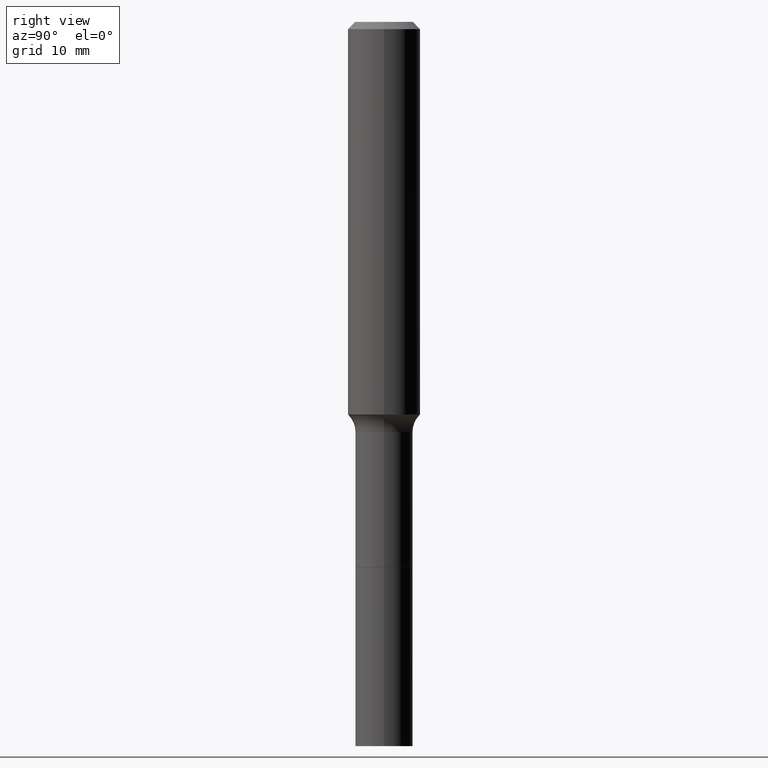
[diagram: clean part render]
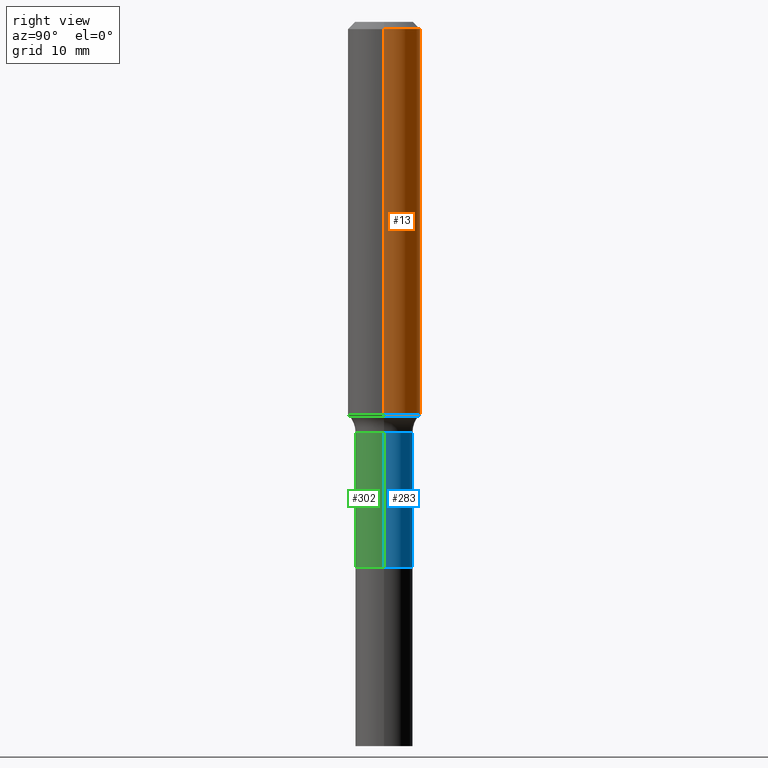
[diagram: same view with three faces highlighted in distinct colors, each labeled with its STEP entity id]
A machine part, right view with three faces highlighted in distinct colors.
Their STEP definitions:

[orange] entity #13 — the highlighted cylindrical surface (edge-blend (fillet) strip) has radius 2.9997 mm, axis along (-0, 0, 1).
#8 = EDGE_LOOP ( 'NONE', ( #204, #317, #486, #475 ) ) ;
#9 = VERTEX_POINT ( 'NONE', #397 ) ;
#11 = VECTOR ( 'NONE', #170, 39.37007874015748143 ) ;
#13 = ADVANCED_FACE ( 'NONE', ( #49 ), #124, .T. ) ;
#22 = CARTESIAN_POINT ( 'NONE',  ( 5.776197320209328408E-31, -8.246878922347560526E-17, -0.02362000000000014435 ) ) ;
#33 = DIRECTION ( 'NONE',  ( -2.445468806185136597E-29, 3.491481338843145583E-15, 1.000000000000000000 ) ) ;
#49 = FACE_OUTER_BOUND ( 'NONE', #8, .T. ) ;
#80 = CIRCLE ( 'NONE', #144, 0.1180999999999999966 ) ;
#84 = CARTESIAN_POINT ( 'NONE',  ( -0.1181000000000001493, -3.631952688209819497E-15, -1.280574983861703098 ) ) ;
#124 = CYLINDRICAL_SURFACE ( 'NONE', #452, 0.1181000000000000660 ) ;
#144 = AXIS2_PLACEMENT_3D ( 'NONE', #22, #219, #463 ) ;
#156 = VERTEX_POINT ( 'NONE', #469 ) ;
#170 = DIRECTION ( 'NONE',  ( -2.445468806185136877E-29, 3.491481338843145188E-15, 1.000000000000000000 ) ) ;
#189 = LINE ( 'NONE', #193, #342 ) ;
#191 = VERTEX_POINT ( 'NONE', #338 ) ;
#193 = CARTESIAN_POINT ( 'NONE',  ( 0.1181000000000000660, -8.246878922347485584E-16, 5.758764772215003944E-30 ) ) ;
#199 = DIRECTION ( 'NONE',  ( -2.445468806185136597E-29, 3.491481338843145583E-15, 1.000000000000000000 ) ) ;
#204 = ORIENTED_EDGE ( 'NONE', *, *, #337, .T. ) ;
#208 = EDGE_CURVE ( 'NONE', #9, #156, #80, .T. ) ;
#219 = DIRECTION ( 'NONE',  ( -2.445468806185136597E-29, 3.491481338843145583E-15, 1.000000000000000000 ) ) ;
#231 = EDGE_CURVE ( 'NONE', #322, #156, #513, .T. ) ;
#244 = AXIS2_PLACEMENT_3D ( 'NONE', #387, #33, #481 ) ;
#282 = DIRECTION ( 'NONE',  ( 1.000000000000000000, -6.982962677686266711E-15, 4.876176775795936353E-29 ) ) ;
#317 = ORIENTED_EDGE ( 'NONE', *, *, #231, .T. ) ;
#322 = VERTEX_POINT ( 'NONE', #84 ) ;
#337 = EDGE_CURVE ( 'NONE', #191, #322, #350, .T. ) ;
#338 = CARTESIAN_POINT ( 'NONE',  ( 0.1181000000000001493, -5.295791551377247535E-15, -1.280574983861703098 ) ) ;
#342 = VECTOR ( 'NONE', #357, 39.37007874015748143 ) ;
#349 = EDGE_CURVE ( 'NONE', #191, #9, #189, .T. ) ;
#350 = CIRCLE ( 'NONE', #244, 0.1181000000000001493 ) ;
#357 = DIRECTION ( 'NONE',  ( -2.445468806185136877E-29, 3.491481338843145188E-15, 1.000000000000000000 ) ) ;
#387 = CARTESIAN_POINT ( 'NONE',  ( 3.131606177014830076E-29, -4.471103659142498483E-15, -1.280574983861703098 ) ) ;
#397 = CARTESIAN_POINT ( 'NONE',  ( 0.1180999999999999966, -9.071566814582237199E-16, -0.02362000000000014435 ) ) ;
#400 = CARTESIAN_POINT ( 'NONE',  ( 0.000000000000000000, 0.000000000000000000, 0.000000000000000000 ) ) ;
#419 = CARTESIAN_POINT ( 'NONE',  ( -0.1181000000000000660, 8.391509709326787887E-16, -5.809262341591047287E-30 ) ) ;
#452 = AXIS2_PLACEMENT_3D ( 'NONE', #400, #199, #282 ) ;
#463 = DIRECTION ( 'NONE',  ( 1.000000000000000000, -6.982962677686266711E-15, 0.000000000000000000 ) ) ;
#469 = CARTESIAN_POINT ( 'NONE',  ( -0.1180999999999999966, -1.437635253250307787E-15, -0.02362000000000014435 ) ) ;
#475 = ORIENTED_EDGE ( 'NONE', *, *, #349, .F. ) ;
#481 = DIRECTION ( 'NONE',  ( 1.000000000000000000, -6.982962677686264344E-15, 0.000000000000000000 ) ) ;
#486 = ORIENTED_EDGE ( 'NONE', *, *, #208, .F. ) ;
#513 = LINE ( 'NONE', #419, #11 ) ;

[blue] entity #283 — the highlighted cylindrical surface (edge-blend (fillet) strip) has radius 2.3812 mm, axis along (-0, 0, 1).
#14 = DIRECTION ( 'NONE',  ( -2.445468806185136877E-29, 3.491481338843145188E-15, 1.000000000000000000 ) ) ;
#25 = DIRECTION ( 'NONE',  ( -2.445468806185136877E-29, 3.491481338843145188E-15, 1.000000000000000000 ) ) ;
#59 = CARTESIAN_POINT ( 'NONE',  ( 0.000000000000000000, 0.000000000000000000, 0.000000000000000000 ) ) ;
#96 = AXIS2_PLACEMENT_3D ( 'NONE', #110, #514, #181 ) ;
#104 = CARTESIAN_POINT ( 'NONE',  ( 0.09375000000000001388, -6.864950608433390424E-15, -1.778700000000000170 ) ) ;
#110 = CARTESIAN_POINT ( 'NONE',  ( 3.272526356436949336E-29, -4.672300327639896745E-15, -1.338200000000000056 ) ) ;
#111 = DIRECTION ( 'NONE',  ( 1.000000000000000000, -6.982962677686266711E-15, 4.876176775795935793E-29 ) ) ;
#118 = VERTEX_POINT ( 'NONE', #104 ) ;
#119 = DIRECTION ( 'NONE',  ( -2.445468806185136597E-29, 3.491481338843145583E-15, 1.000000000000000000 ) ) ;
#153 = VERTEX_POINT ( 'NONE', #339 ) ;
#172 = CIRCLE ( 'NONE', #304, 0.09375000000000001388 ) ;
#181 = DIRECTION ( 'NONE',  ( 1.000000000000000000, -6.982962677686265922E-15, 0.000000000000000000 ) ) ;
#201 = EDGE_CURVE ( 'NONE', #153, #223, #297, .T. ) ;
#202 = ORIENTED_EDGE ( 'NONE', *, *, #391, .F. ) ;
#213 = EDGE_CURVE ( 'NONE', #352, #223, #422, .T. ) ;
#216 = CYLINDRICAL_SURFACE ( 'NONE', #468, 0.09374999999999998612 ) ;
#223 = VERTEX_POINT ( 'NONE', #296 ) ;
#236 = ORIENTED_EDGE ( 'NONE', *, *, #213, .T. ) ;
#238 = LINE ( 'NONE', #406, #256 ) ;
#250 = FACE_OUTER_BOUND ( 'NONE', #271, .T. ) ;
#252 = CARTESIAN_POINT ( 'NONE',  ( -0.09374999999999998612, 6.661338147750938256E-16, -4.611501647113973295E-30 ) ) ;
#256 = VECTOR ( 'NONE', #14, 39.37007874015748143 ) ;
#271 = EDGE_LOOP ( 'NONE', ( #438, #236, #447, #202 ) ) ;
#283 = ADVANCED_FACE ( 'NONE', ( #250 ), #216, .T. ) ;
#296 = CARTESIAN_POINT ( 'NONE',  ( -0.09374999999999995837, -4.775165277745006303E-15, -1.338200000000000056 ) ) ;
#297 = CIRCLE ( 'NONE', #96, 0.09374999999999995837 ) ;
#304 = AXIS2_PLACEMENT_3D ( 'NONE', #346, #119, #395 ) ;
#339 = CARTESIAN_POINT ( 'NONE',  ( 0.09374999999999995837, -5.326953078672984249E-15, -1.338200000000000056 ) ) ;
#345 = CARTESIAN_POINT ( 'NONE',  ( -0.09375000000000001388, -4.775165277745006303E-15, -1.778700000000000170 ) ) ;
#346 = CARTESIAN_POINT ( 'NONE',  ( 4.349755365561502845E-29, -6.210297857400303709E-15, -1.778700000000000170 ) ) ;
#352 = VERTEX_POINT ( 'NONE', #345 ) ;
#364 = EDGE_CURVE ( 'NONE', #118, #352, #172, .T. ) ;
#379 = DIRECTION ( 'NONE',  ( -2.445468806185136597E-29, 3.491481338843145583E-15, 1.000000000000000000 ) ) ;
#391 = EDGE_CURVE ( 'NONE', #118, #153, #238, .T. ) ;
#395 = DIRECTION ( 'NONE',  ( 1.000000000000000000, -6.982962677686261189E-15, 0.000000000000000000 ) ) ;
#404 = VECTOR ( 'NONE', #25, 39.37007874015748143 ) ;
#406 = CARTESIAN_POINT ( 'NONE',  ( 0.09374999999999998612, -6.546527510330874055E-16, 4.571415727308689105E-30 ) ) ;
#422 = LINE ( 'NONE', #252, #404 ) ;
#438 = ORIENTED_EDGE ( 'NONE', *, *, #364, .T. ) ;
#447 = ORIENTED_EDGE ( 'NONE', *, *, #201, .F. ) ;
#468 = AXIS2_PLACEMENT_3D ( 'NONE', #59, #379, #111 ) ;
#514 = DIRECTION ( 'NONE',  ( -2.445468806185136597E-29, 3.491481338843145583E-15, 1.000000000000000000 ) ) ;

[green] entity #302 — the highlighted cylindrical surface (edge-blend (fillet) strip) has radius 2.3812 mm, axis along (-0, 0, 1).
#2 = CIRCLE ( 'NONE', #53, 0.09375000000000001388 ) ;
#6 = EDGE_CURVE ( 'NONE', #352, #118, #2, .T. ) ;
#14 = DIRECTION ( 'NONE',  ( -2.445468806185136877E-29, 3.491481338843145188E-15, 1.000000000000000000 ) ) ;
#23 = AXIS2_PLACEMENT_3D ( 'NONE', #485, #155, #222 ) ;
#25 = DIRECTION ( 'NONE',  ( -2.445468806185136877E-29, 3.491481338843145188E-15, 1.000000000000000000 ) ) ;
#41 = DIRECTION ( 'NONE',  ( -2.445468806185136597E-29, 3.491481338843145583E-15, 1.000000000000000000 ) ) ;
#44 = CARTESIAN_POINT ( 'NONE',  ( 4.349755365561502845E-29, -6.210297857400303709E-15, -1.778700000000000170 ) ) ;
#53 = AXIS2_PLACEMENT_3D ( 'NONE', #44, #487, #83 ) ;
#72 = FACE_OUTER_BOUND ( 'NONE', #87, .T. ) ;
#83 = DIRECTION ( 'NONE',  ( 1.000000000000000000, -6.982962677686261189E-15, 0.000000000000000000 ) ) ;
#87 = EDGE_LOOP ( 'NONE', ( #392, #437, #363, #249 ) ) ;
#89 = EDGE_CURVE ( 'NONE', #223, #153, #348, .T. ) ;
#104 = CARTESIAN_POINT ( 'NONE',  ( 0.09375000000000001388, -6.864950608433390424E-15, -1.778700000000000170 ) ) ;
#118 = VERTEX_POINT ( 'NONE', #104 ) ;
#153 = VERTEX_POINT ( 'NONE', #339 ) ;
#155 = DIRECTION ( 'NONE',  ( -2.445468806185136597E-29, 3.491481338843145583E-15, 1.000000000000000000 ) ) ;
#186 = AXIS2_PLACEMENT_3D ( 'NONE', #497, #41, #403 ) ;
#213 = EDGE_CURVE ( 'NONE', #352, #223, #422, .T. ) ;
#222 = DIRECTION ( 'NONE',  ( 1.000000000000000000, -6.982962677686266711E-15, 4.876176775795935793E-29 ) ) ;
#223 = VERTEX_POINT ( 'NONE', #296 ) ;
#238 = LINE ( 'NONE', #406, #256 ) ;
#249 = ORIENTED_EDGE ( 'NONE', *, *, #89, .F. ) ;
#252 = CARTESIAN_POINT ( 'NONE',  ( -0.09374999999999998612, 6.661338147750938256E-16, -4.611501647113973295E-30 ) ) ;
#256 = VECTOR ( 'NONE', #14, 39.37007874015748143 ) ;
#296 = CARTESIAN_POINT ( 'NONE',  ( -0.09374999999999995837, -4.775165277745006303E-15, -1.338200000000000056 ) ) ;
#302 = ADVANCED_FACE ( 'NONE', ( #72 ), #446, .T. ) ;
#339 = CARTESIAN_POINT ( 'NONE',  ( 0.09374999999999995837, -5.326953078672984249E-15, -1.338200000000000056 ) ) ;
#345 = CARTESIAN_POINT ( 'NONE',  ( -0.09375000000000001388, -4.775165277745006303E-15, -1.778700000000000170 ) ) ;
#348 = CIRCLE ( 'NONE', #186, 0.09374999999999995837 ) ;
#352 = VERTEX_POINT ( 'NONE', #345 ) ;
#363 = ORIENTED_EDGE ( 'NONE', *, *, #391, .T. ) ;
#391 = EDGE_CURVE ( 'NONE', #118, #153, #238, .T. ) ;
#392 = ORIENTED_EDGE ( 'NONE', *, *, #213, .F. ) ;
#403 = DIRECTION ( 'NONE',  ( 1.000000000000000000, -6.982962677686265922E-15, 0.000000000000000000 ) ) ;
#404 = VECTOR ( 'NONE', #25, 39.37007874015748143 ) ;
#406 = CARTESIAN_POINT ( 'NONE',  ( 0.09374999999999998612, -6.546527510330874055E-16, 4.571415727308689105E-30 ) ) ;
#422 = LINE ( 'NONE', #252, #404 ) ;
#437 = ORIENTED_EDGE ( 'NONE', *, *, #6, .T. ) ;
#446 = CYLINDRICAL_SURFACE ( 'NONE', #23, 0.09374999999999998612 ) ;
#485 = CARTESIAN_POINT ( 'NONE',  ( 0.000000000000000000, 0.000000000000000000, 0.000000000000000000 ) ) ;
#487 = DIRECTION ( 'NONE',  ( -2.445468806185136597E-29, 3.491481338843145583E-15, 1.000000000000000000 ) ) ;
#497 = CARTESIAN_POINT ( 'NONE',  ( 3.272526356436949336E-29, -4.672300327639896745E-15, -1.338200000000000056 ) ) ;